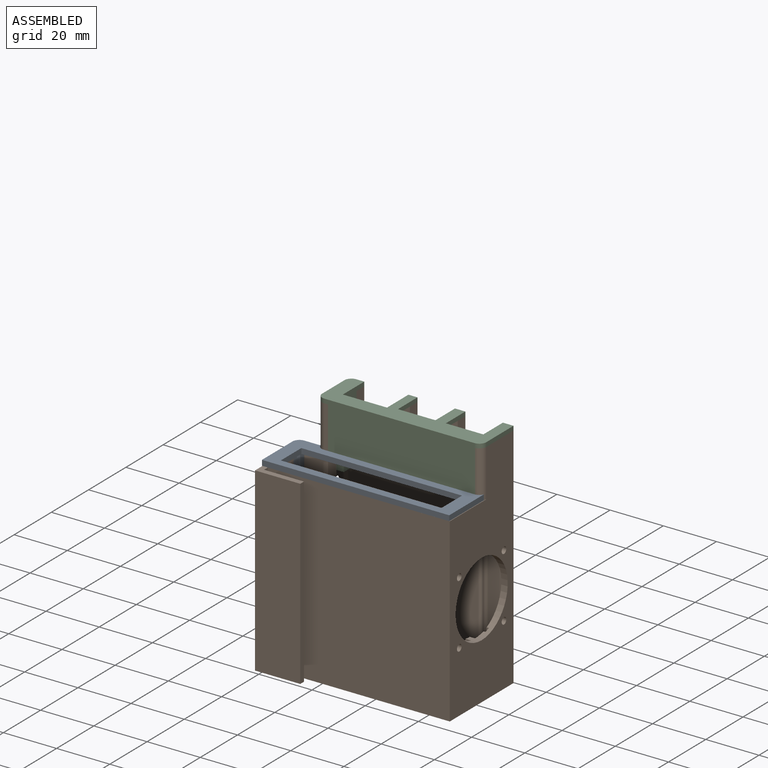
[diagram: assembled view]
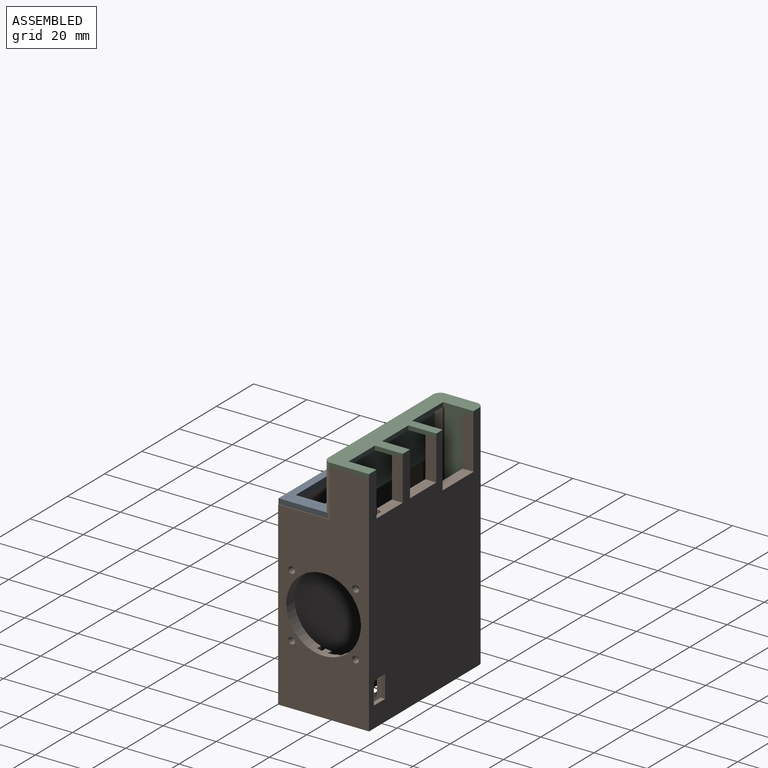
[diagram: assembled view, second angle]
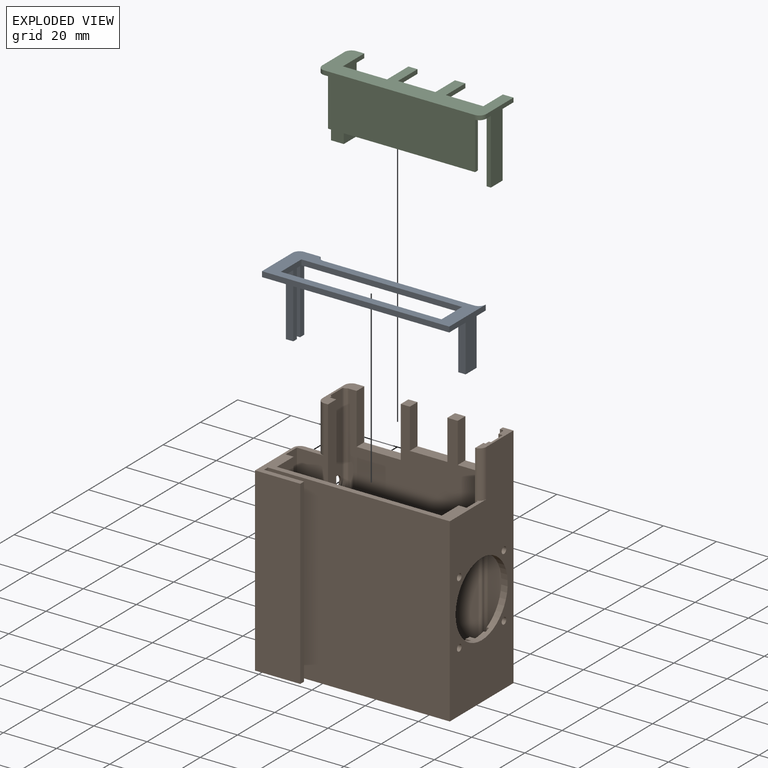
[diagram: exploded view]
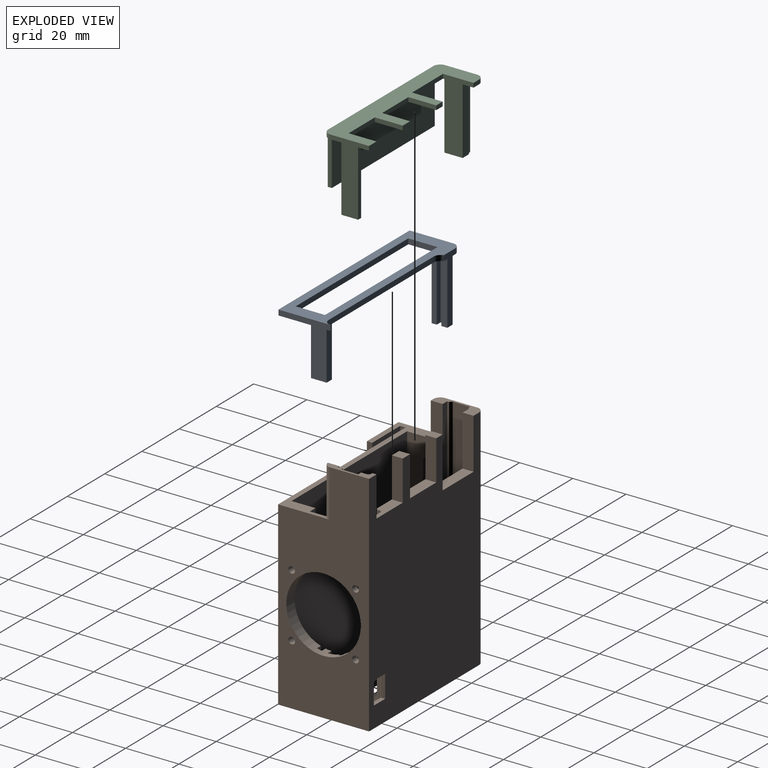
[diagram: exploded view, second angle]
ASSEMBLY  parts=3 mates=2
PART A: 31 faces, bbox 70.4x19.6x27 mm
  f0: plane 70.4x19.59mm, normal (0,0,-1), area 525.2mm2, adj f1,f2,f3,f4,f5,f6,f7,f8
  f1: plane 70.4x2mm, normal (0,-1,0), area 140.8mm2, adj f0,f2,f8,f9
  f2: plane 19.59x2mm, normal (1,0,0), area 39.2mm2, adj f0,f1,f3,f9
  f3: cylinder r=2.6mm len=2.59mm, axis (0,0,-1), area 7.8mm2, adj f0,f2,f4,f9
  f4: plane 57.5x20.9mm, normal (0,1,0), area 166.3mm2, adj f0,f3,f5,f9,f19,f25,f26
  f5: cylinder r=2.6mm len=2.53mm, axis (0,0,-1), area 7mm2, adj f0,f4,f6,f9
  f6: plane 6.17x2mm, normal (0,1,0), area 12.3mm2, adj f0,f5,f7,f9
  f7: cylinder r=2.6mm len=2.6mm, axis (0,0,-1), area 8.2mm2, adj f0,f6,f8,f9
  f8: plane 16.4x2mm, normal (-1,0,0), area 32.8mm2, adj f0,f1,f7,f9
  f9: plane 70.4x19.59mm, normal (0,0,1), area 551.2mm2, adj f1,f2,f3,f4,f5,f6,f7,f8
  f10: plane 25x2.25mm, normal (1,0,0), area 56.2mm2, adj f0,f11,f17,f18
  f11: plane 25x2.8mm, normal (0,1,0), area 70mm2, adj f0,f10,f12,f18
  f12: plane 25x5.9mm, normal (-1,0,0), area 147.5mm2, adj f0,f11,f13,f18
  f13: plane 25x2.8mm, normal (0,-1,0), area 70mm2, adj f0,f12,f14,f18
  f14: plane 25x1.9mm, normal (1,0,0), area 47.5mm2, adj f0,f13,f15,f18
  f15: plane 25x2mm, normal (0,1,0), area 50mm2, adj f0,f14,f16,f18
  f16: plane 25x1.75mm, normal (1,0,0), area 43.8mm2, adj f0,f15,f17,f18
  f17: plane 25x2mm, normal (0,-1,0), area 50mm2, adj f0,f10,f16,f18
  f18: plane 5.9x2.8mm, normal (0,0,-1), area 13mm2, adj f10,f11,f12,f13,f14,f15,f16,f17
  f19: plane 18.9x2.25mm, normal (-1,0,0), area 42.5mm2, adj f0,f4,f20,f26
  f20: plane 18.9x2mm, normal (0,-1,0), area 37.8mm2, adj f0,f19,f21,f26
  f21: plane 18.9x1.75mm, normal (-1,0,0), area 33.1mm2, adj f0,f20,f22,f26
  f22: plane 18.9x2mm, normal (0,1,0), area 37.8mm2, adj f0,f21,f23,f26
  f23: plane 18.9x1.9mm, normal (-1,0,0), area 35.9mm2, adj f0,f22,f24,f26
  f24: plane 18.9x2.8mm, normal (0,-1,0), area 52.9mm2, adj f0,f23,f25,f26
  f25: plane 18.9x5.9mm, normal (1,0,0), area 111.5mm2, adj f0,f4,f24,f26
  f26: plane 5.9x2.8mm, normal (0,0,-1), area 13mm2, adj f4,f19,f20,f21,f22,f23,f24,f25
  f27: plane 60.4x2mm, normal (0,1,0), area 120.8mm2, adj f0,f9,f28,f29
  f28: plane 11x2mm, normal (1,0,0), area 22mm2, adj f0,f9,f27,f30
  f29: plane 11x2mm, normal (-1,0,0), area 22mm2, adj f0,f9,f27,f30
  f30: plane 60.4x2mm, normal (0,-1,0), area 120.8mm2, adj f0,f9,f28,f29
PART B: 160 faces, bbox 70.8x38.6x86.2 mm
  f0: plane 66x11mm, normal (1,0,0), area 577.7mm2, adj f3,f4,f10,f126,f143,f144,f145,f146
  f1: plane 66x11mm, normal (-1,0,0), area 481.6mm2, adj f3,f6,f10,f123,f126,f128,f129,f155
  f2: plane 41x1.75mm, normal (1,0,0), area 71.8mm2, adj f4,f5,f10,f159
  f3: plane 70.4x23.59mm, normal (0,0,1), area 287.6mm2, adj f0,f1,f7,f17,f37,f121,f122,f126
  f4: plane 41x2mm, normal (0,1,0), area 82mm2, adj f0,f2,f10,f159
  f5: plane 41x2mm, normal (0,-1,0), area 82mm2, adj f2,f10,f125,f159
  f6: cylinder r=14mm len=28mm, axis (1,0,0), area 273.4mm2, adj f1,f11,f12,f13,f14,f15,f16,f18
  f7: plane 68x2mm, normal (1,0,0), area 136mm2, adj f3,f9,f127,f141
  f8: plane 69.5x5mm, normal (0,-1,0), area 281.5mm2, adj f31,f59,f61,f68,f70,f139
  f9: plane 70.4x38.2mm, normal (0,0,-1), area 1905.4mm2, adj f7,f15,f37,f38,f39,f43,f44,f45
  f10: plane 66x15mm, normal (0,0,1), area 613.2mm2, adj f0,f1,f2,f4,f5,f15,f16,f17
  f11: plane 37.42x4.48mm, normal (-1,0,0), area 165.3mm2, adj f6,f14,f31,f153,f154
  f12: plane 38.13x1.75mm, normal (-1,0,0), area 66.1mm2, adj f6,f14,f31,f41,f109
  f13: plane 21.69x6.09mm, normal (0,-1,0), area 31.4mm2, adj f6,f21,f34,f40,f85
  f14: plane 37.42x0.8mm, normal (0,1,0), area 29.9mm2, adj f6,f11,f12,f31
  f15: plane 55.3x21.08mm, normal (0,1,0), area 115.7mm2, adj f6,f9,f10,f16,f18,f34,f43,f45
  f16: plane 19.28x2.25mm, normal (-1,0,0), area 43.1mm2, adj f6,f10,f15,f124
  f17: plane 83.8x11.7mm, normal (0,-1,0), area 674.1mm2, adj f3,f10,f20,f101,f125,f152,f157,f159
  f18: plane 20.98x4.48mm, normal (-1,0,0), area 80.7mm2, adj f6,f15,f34,f42,f52,f86,f119
  f19: plane 19.69x1.75mm, normal (-1,0,0), area 34.1mm2, adj f6,f10,f123,f124
  f20: plane 17.2x5.6mm, normal (0,0,1), area 46.4mm2, adj f17,f22,f23,f28,f33,f38,f39,f51
  f21: plane 79.71x8.38mm, normal (-1,0,0), area 352.5mm2, adj f6,f13,f31,f41,f53,f68,f85,f111
  f22: plane 85.1x50.2mm, normal (0,-1,0), area 3518.2mm2, adj f20,f27,f28,f32,f33,f34,f36,f57
  f23: plane 34.45x6.5mm, normal (1,0,0), area 199.8mm2, adj f20,f25,f26,f55,f56,f88
  f24: cone r=1.4mm half-angle=45deg, axis (1,0,0), area 0.8mm2, adj f27,f33,f79,f83,f105
  f25: cone r=3.25mm half-angle=45deg, axis (1,0,0), area 9.7mm2, adj f23,f33,f88,f89
  f26: cylinder r=2.5mm len=5mm, axis (1,0,0), area 12.6mm2, adj f23,f39
  f27: cylinder r=5mm len=6.38mm, axis (0,1,0), area 50.4mm2, adj f22,f24,f33,f34,f79,f87
  f28: cylinder r=1mm len=44.27mm, axis (0,0,-1), area 44.1mm2, adj f20,f22,f33,f89,f90,f93,f95
  f29: plane 5.42x4.59mm, normal (0,1,0), area 18.3mm2, adj f30,f34,f82,f84,f101,f104
  f30: plane 5.34x2.25mm, normal (1,0,0), area 9mm2, adj f29,f34,f54,f79,f82,f87
  f31: plane 17.2x4mm, normal (0,0,1), area 31.1mm2, adj f8,f11,f12,f14,f21,f37,f38,f61
  f32: plane 4.1x3.4mm, normal (0,0,1), area 13.9mm2, adj f22,f38,f63,f67
  f33: plane 80x8.63mm, normal (1,0,0), area 201.6mm2, adj f20,f22,f24,f25,f27,f28,f51,f88
  f34: plane 58.5x15.6mm, normal (0,0,1), area 568.3mm2, adj f13,f15,f18,f22,f27,f29,f30,f40
  f35: plane 7x5mm, normal (0,-1,0), area 22.5mm2, adj f53,f68,f70,f137
  f36: plane 4.1x3.9mm, normal (0,0,1), area 16mm2, adj f22,f38,f60,f64
  f37: plane 85.8x34.2mm, normal (1,0,0), area 1950.2mm2, adj f3,f6,f9,f31,f38,f127,f128,f129
  f38: plane 85.8x59.1mm, normal (0,1,0), area 4281.4mm2, adj f9,f20,f31,f32,f36,f37,f59,f60
  f39: plane 85.8x12mm, normal (-1,0,0), area 818mm2, adj f9,f20,f26,f46,f47,f48,f49,f71
  f40: plane 21.69x1.75mm, normal (-1,0,0), area 37.3mm2, adj f6,f13,f34,f42
  f41: plane 13.13x0.8mm, normal (0,-1,0), area 10.5mm2, adj f6,f12,f21,f112
  f42: plane 20.98x6.09mm, normal (0,1,0), area 30.8mm2, adj f6,f18,f34,f40,f86
  f43: plane 3.58x0.8mm, normal (-1,0,0), area 2.9mm2, adj f9,f15,f34,f100
  f44: plane 12x0.8mm, normal (0,-1,0), area 9.6mm2, adj f9,f34,f99,f100
  f45: plane 3.58x0.8mm, normal (1,0,0), area 2.9mm2, adj f9,f15,f34,f99
  f46: plane 5.4x1.2mm, normal (0,0,1), area 6.5mm2, adj f39,f74,f75,f92
  f47: plane 15.4x1.6mm, normal (0,-1,0), area 24.6mm2, adj f39,f57,f72,f75
  f48: plane 5.4x1.24mm, normal (0,0,-1), area 6.5mm2, adj f39,f72,f73,f95,f97
  f49: plane 15.4x1.2mm, normal (0,1,0), area 18.5mm2, adj f39,f73,f74,f96
  f50: cylinder r=5mm len=4.39mm, axis (0,-1,0), area 12.1mm2, adj f34,f84,f101,f117,f118
  f51: plane 68.42x2.89mm, normal (0,1,0), area 164mm2, adj f20,f33,f81,f101,f102,f108
  f52: plane 6.42x6.42mm, normal (-0.71,0,0.71), area 19.8mm2, adj f18,f34,f86,f119,f120
  f53: plane 9.3x6.42mm, normal (-0.71,0,0.71), area 75mm2, adj f21,f34,f35,f68,f85
  f54: plane 4.5x4.5mm, normal (0,-1,0), area 15.9mm2, adj f30,f34,f87
  f55: plane 31.2x0.48mm, normal (0,-1,0), area 15mm2, adj f20,f23,f56,f90
  f56: cylinder r=3.25mm len=2.33mm, axis (1,0,0), area 0.6mm2, adj f23,f55,f89
  f57: plane 16.26x0.13mm, normal (-1,0,0), area 2mm2, adj f22,f47,f72,f75
  f58: plane 70x0.5mm, normal (1,0,0), area 35mm2, adj f34,f59,f69,f70
  f59: plane 14.1x4.1mm, normal (0,0,1), area 44.3mm2, adj f8,f22,f38,f58,f60,f61,f69,f70
  f60: plane 15x4.1mm, normal (1,0,0), area 61.5mm2, adj f22,f36,f38,f59
  f61: plane 15x1.6mm, normal (-1,0,0), area 24mm2, adj f8,f31,f38,f59
  f62: plane 14.1x4.1mm, normal (0,0,1), area 57.8mm2, adj f22,f38,f63,f64
  f63: plane 15x4.1mm, normal (1,0,0), area 61.5mm2, adj f22,f32,f38,f62
  f64: plane 15x4.1mm, normal (-1,0,0), area 61.5mm2, adj f22,f36,f38,f62
  f65: plane 16.6x4.1mm, normal (0,0,1), area 68.1mm2, adj f22,f38,f66,f67
  f66: plane 19x4.1mm, normal (1,0,0), area 77.9mm2, adj f20,f22,f38,f65
  f67: plane 19x4.1mm, normal (-1,0,0), area 77.9mm2, adj f22,f32,f38,f65
  f68: cylinder r=1mm len=80mm, axis (0,0,-1), area 117mm2, adj f8,f21,f31,f35,f53,f136,f137,f139
  f69: cylinder r=1mm len=70mm, axis (0,0,1), area 110mm2, adj f22,f34,f58,f59
  f70: cylinder r=1mm len=70mm, axis (0,0,1), area 108.2mm2, adj f8,f34,f35,f58,f59,f137,f138,f139
  f71: cylinder r=2.6mm len=85.8mm, axis (0,0,-1), area 350.4mm2, adj f9,f20,f38,f39
  f72: cylinder r=0.8mm len=2.19mm, axis (1,0,0), area 2.1mm2, adj f22,f39,f47,f48,f57,f93
  f73: cylinder r=0.8mm len=1.2mm, axis (1,0,0), area 1.5mm2, adj f39,f48,f49,f98
  f74: cylinder r=0.8mm len=1.2mm, axis (1,0,0), area 1.5mm2, adj f39,f46,f49,f94
  f75: cylinder r=0.8mm len=1.6mm, axis (1,0,0), area 1.7mm2, adj f22,f39,f46,f47,f57,f91
  f76: plane 10x3.6mm, normal (0,1,0), area 36mm2, adj f39,f81,f82,f103
  f77: plane 4.2x1.2mm, normal (0,0,-1), area 5mm2, adj f39,f80,f81,f107
  f78: plane 10x1.2mm, normal (0,-1,0), area 12mm2, adj f39,f80,f83,f105
  f79: plane 4.5x1.9mm, normal (0,0,1), area 6.5mm2, adj f24,f27,f30,f39,f82,f83
  f80: cylinder r=1mm len=1.2mm, axis (1,0,0), area 1.9mm2, adj f39,f77,f78,f106
  f81: cylinder r=1mm len=3.6mm, axis (1,0,0), area 3.6mm2, adj f39,f51,f76,f77,f102,f108
  f82: cylinder r=1mm len=3.6mm, axis (1,0,0), area 4mm2, adj f29,f30,f39,f76,f79,f104
  f83: cylinder r=1mm len=1.2mm, axis (1,0,0), area 1.9mm2, adj f24,f39,f78,f79
  f84: cone r=4.5mm half-angle=45deg, axis (0,-1,0), area 3.5mm2, adj f29,f34,f50,f101
  f85: plane 6x6mm, normal (-0.5,-0.71,0.5), area 5.6mm2, adj f13,f21,f34,f53
  f86: plane 6x6mm, normal (-0.5,0.71,0.5), area 5.6mm2, adj f18,f34,f42,f52
  f87: cone r=4.5mm half-angle=45deg, axis (0,1,0), area 5.3mm2, adj f27,f30,f34,f54
  f88: plane 31.2x0.8mm, normal (0.71,0.71,0), area 35.3mm2, adj f20,f23,f25,f33
  f89: bspline ~2.9x1.24mm, area 2.4mm2, adj f25,f28,f56,f90
  f90: plane 31.2x0.59mm, normal (0.4,-0.92,0), area 20mm2, adj f20,f28,f55,f89
  f91: cone r=1.2mm half-angle=45deg, axis (1,0,0), area 0.4mm2, adj f22,f33,f75,f92
  f92: plane 5.4x0.4mm, normal (0.71,0,0.71), area 3.1mm2, adj f33,f46,f91,f94
  f93: bspline ~1.42x0.84mm, area 0.6mm2, adj f22,f28,f72,f95
  f94: cone r=1.2mm half-angle=45deg, axis (1,0,0), area 0.9mm2, adj f33,f74,f92,f96
  f95: cone r=1.4mm half-angle=45deg, axis (0,0,-1), area 0.2mm2, adj f28,f48,f93,f97
  f96: plane 15.4x0.4mm, normal (0.71,0.71,0), area 8.7mm2, adj f33,f49,f94,f98
  f97: plane 5.08x0.4mm, normal (0.71,0,-0.71), area 2.9mm2, adj f33,f48,f95,f98
  f98: cone r=1.2mm half-angle=45deg, axis (1,0,0), area 0.9mm2, adj f33,f73,f96,f97
  f99: cylinder r=1mm len=1mm, axis (0,0,-1), area 1.3mm2, adj f9,f34,f44,f45
  f100: cylinder r=1mm len=1mm, axis (0,0,-1), area 1.3mm2, adj f9,f34,f43,f44
  f101: plane 85.02x4.49mm, normal (1,0,0), area 364.7mm2, adj f15,f17,f20,f29,f34,f50,f51,f84
  f102: cone r=1.4mm half-angle=45deg, axis (1,0,0), area 0.6mm2, adj f51,f81,f101,f103
  f103: plane 10x0.4mm, normal (0.71,0.71,0), area 5.7mm2, adj f76,f101,f102,f104
  f104: cone r=1.4mm half-angle=45deg, axis (1,0,0), area 0.6mm2, adj f29,f82,f101,f103
  f105: plane 10x0.4mm, normal (0.71,-0.71,0), area 5.7mm2, adj f24,f33,f78,f106
  f106: cone r=1.4mm half-angle=45deg, axis (1,0,0), area 1.1mm2, adj f33,f80,f105,f107
  f107: plane 4.2x0.4mm, normal (0.71,0,-0.71), area 2.4mm2, adj f33,f77,f106,f108
  f108: cone r=1.4mm half-angle=45deg, axis (1,0,0), area 0.5mm2, adj f33,f51,f81,f107
  f109: plane 25x0.8mm, normal (0,1,0), area 20mm2, adj f12,f31,f110,f112
  f110: plane 25x6.3mm, normal (-1,0,0), area 157.5mm2, adj f31,f109,f111,f112
  f111: plane 25x1.6mm, normal (0,-1,0), area 40mm2, adj f21,f31,f110,f112
  f112: plane 6.3x1.6mm, normal (0,0,1), area 10.1mm2, adj f21,f41,f109,f110,f111
  f113: plane 3x0.8mm, normal (1,0,0), area 2.4mm2, adj f9,f34,f114,f115
  f114: plane 5.92x0.8mm, normal (0,1,0), area 4.7mm2, adj f9,f34,f113,f116
  f115: plane 5.92x0.8mm, normal (0,-1,0), area 4.7mm2, adj f9,f34,f113,f116
  f116: plane 3x0.8mm, normal (-1,0,0), area 2.4mm2, adj f9,f34,f114,f115
  f117: cylinder r=1mm len=4.39mm, axis (0,0,1), area 6.3mm2, adj f34,f50,f101,f118
  f118: plane 3.67x1.6mm, normal (0,-1,0), area 4.1mm2, adj f34,f50,f117
  f119: cylinder r=1mm len=6mm, axis (0,0,1), area 8.6mm2, adj f18,f34,f52,f120
  f120: plane 5x5mm, normal (0,-1,0), area 12.5mm2, adj f34,f52,f119
  f121: plane 68x20.4mm, normal (-1,0,0), area 1288.9mm2, adj f3,f9,f140,f143,f144,f145,f146,f147
  f122: plane 68x6.17mm, normal (0,1,0), area 419.6mm2, adj f3,f9,f151,f152
  f123: plane 19.69x2mm, normal (0,1,0), area 39.4mm2, adj f1,f6,f10,f19
  f124: plane 19.28x2mm, normal (0,-1,0), area 38.6mm2, adj f6,f10,f16,f19
  f125: plane 41x2.25mm, normal (1,0,0), area 92.3mm2, adj f5,f10,f17,f159
  f126: plane 66x62mm, normal (0,1,0), area 4092mm2, adj f0,f1,f3,f10
  f127: plane 68.4x68mm, normal (0,-1,0), area 4651.2mm2, adj f3,f7,f9,f37
  f128: cylinder r=1.25mm len=4.4mm, axis (1,0,0), area 34.6mm2, adj f1,f37
  f129: cylinder r=1.25mm len=4.4mm, axis (1,0,0), area 34.6mm2, adj f1,f37
  f130: cylinder r=1.25mm len=2.5mm, axis (1,0,0), area 18.8mm2, adj f21,f37
  f131: cylinder r=1.25mm len=2.5mm, axis (1,0,0), area 18.8mm2, adj f21,f37
  f132: plane 7x2mm, normal (-1,0,0), area 14mm2, adj f9,f10,f133,f134
  f133: plane 46.25x2mm, normal (0,-1,0), area 92.5mm2, adj f9,f10,f132,f135
  f134: plane 46.25x2mm, normal (0,1,0), area 92.5mm2, adj f9,f10,f132,f135
  f135: plane 7x2mm, normal (1,0,0), area 14mm2, adj f9,f10,f133,f134
  f136: plane 8.5x2mm, normal (-1,0,0), area 17mm2, adj f38,f68,f137,f139
  f137: plane 6x2mm, normal (0,0,1), area 9.7mm2, adj f35,f38,f68,f70,f136,f138
  f138: plane 8.5x1.62mm, normal (1,0,0), area 13.8mm2, adj f38,f70,f137,f139
  f139: plane 6x2mm, normal (0,0,-1), area 9.7mm2, adj f8,f38,f68,f70,f136,f138
  f140: plane 68x17mm, normal (0,-1,0), area 1156mm2, adj f3,f9,f121,f142
  f141: plane 68x15mm, normal (0,1,0), area 1020mm2, adj f3,f7,f9,f142
  f142: plane 68x2mm, normal (1,0,0), area 136mm2, adj f3,f9,f140,f141
  f143: cylinder r=1mm len=4mm, axis (-1,0,0), area 12.6mm2, adj f0,f121,f144,f146
  f144: plane 23x4mm, normal (0,-1,0), area 92mm2, adj f0,f121,f143,f145
  f145: cylinder r=1mm len=4mm, axis (-1,0,0), area 12.6mm2, adj f0,f121,f144,f146
  f146: plane 23x4mm, normal (0,1,0), area 92mm2, adj f0,f121,f143,f145
  f147: cylinder r=1mm len=4mm, axis (-1,0,0), area 12.6mm2, adj f0,f121,f148,f150
  f148: plane 23x4mm, normal (0,-1,0), area 92mm2, adj f0,f121,f147,f149
  f149: cylinder r=1mm len=4mm, axis (-1,0,0), area 12.6mm2, adj f0,f121,f148,f150
  f150: plane 23x4mm, normal (0,1,0), area 92mm2, adj f0,f121,f147,f149
  f151: cylinder r=2.6mm len=68mm, axis (0,0,-1), area 277.7mm2, adj f3,f9,f121,f122
  f152: cylinder r=2.6mm len=85.8mm, axis (0,0,1), area 113.9mm2, adj f3,f9,f17,f20,f39,f122
  f153: cylinder r=2.6mm len=17.8mm, axis (0,0,1), area 69.1mm2, adj f3,f11,f31,f37
  f154: plane 18.92x1mm, normal (0,-1,0), area 18.9mm2, adj f3,f6,f11,f156
  f155: plane 20.32x3mm, normal (0,1,0), area 61mm2, adj f1,f3,f6,f156
  f156: plane 20.32x6mm, normal (-1,0,0), area 116.3mm2, adj f3,f6,f154,f155
  f157: plane 25x6mm, normal (1,0,0), area 150mm2, adj f3,f17,f158,f159
  f158: plane 25x3mm, normal (0,1,0), area 75mm2, adj f0,f3,f157,f159
  f159: plane 6x3mm, normal (0,0,1), area 14.5mm2, adj f0,f2,f4,f5,f17,f125,f157,f158
PART C: 37 faces, bbox 61.7x17.2x26.6 mm
  f0: plane 25x6.3mm, normal (-1,0,0), area 157.5mm2, adj f1,f22,f23,f30
  f1: plane 6.88x4.8mm, normal (0,0,-1), area 32.4mm2, adj f0,f10,f23,f29,f30,f31,f32
  f2: plane 10.48x1.6mm, normal (1,0,0), area 16.8mm2, adj f3,f20,f21,f22
  f3: plane 3.9x1.6mm, normal (0,1,0), area 6.2mm2, adj f2,f4,f21,f22
  f4: plane 10.48x1.6mm, normal (-1,0,0), area 16.8mm2, adj f3,f5,f21,f22
  f5: plane 14.1x1.6mm, normal (0,1,0), area 22.6mm2, adj f4,f6,f21,f22
  f6: plane 10.48x1.6mm, normal (1,0,0), area 16.8mm2, adj f5,f7,f21,f22
  f7: plane 3.4x1.6mm, normal (0,1,0), area 5.4mm2, adj f6,f8,f21,f22
  f8: plane 11.48x1.6mm, normal (-1,0,0), area 18.4mm2, adj f7,f9,f21,f22
  f9: plane 16.6x1.6mm, normal (0,1,0), area 26.6mm2, adj f8,f10,f21,f22
  f10: plane 26.6x11.48mm, normal (1,0,0), area 190.2mm2, adj f1,f9,f11,f21,f22,f23,f29
  f11: plane 3x1.6mm, normal (0,1,0), area 4.8mm2, adj f10,f12,f21,f22
  f12: cylinder r=2.6mm len=2.6mm, axis (0,0,-1), area 6.5mm2, adj f11,f13,f21,f22
  f13: plane 12x1.6mm, normal (-1,0,0), area 19.2mm2, adj f12,f14,f21,f22
  f14: cylinder r=2.6mm len=2.6mm, axis (0,0,-1), area 6.5mm2, adj f13,f15,f21,f22
  f15: plane 56.5x19.4mm, normal (0,-1,0), area 1071.2mm2, adj f14,f16,f21,f22,f34,f36
  f16: cylinder r=2.6mm len=19.4mm, axis (0,0,-1), area 10.1mm2, adj f15,f17,f21,f22,f33,f36
  f17: plane 14.6x1.6mm, normal (1,0,0), area 23.4mm2, adj f16,f18,f21,f22
  f18: plane 4x1.6mm, normal (0,1,0), area 6.4mm2, adj f17,f19,f21,f22
  f19: plane 10.48x1.6mm, normal (-1,0,0), area 16.8mm2, adj f18,f20,f21,f22
  f20: plane 14.1x1.6mm, normal (0,1,0), area 22.6mm2, adj f2,f19,f21,f22
  f21: plane 61.7x17.2mm, normal (0,0,1), area 571mm2, adj f2,f3,f4,f5,f6,f7,f8,f9
  f22: plane 61.7x17.2mm, normal (0,0,-1), area 445.6mm2, adj f0,f2,f3,f4,f5,f6,f7,f8
  f23: plane 25x4.8mm, normal (0,-1,0), area 120mm2, adj f0,f1,f10,f22
  f24: plane 25x1.6mm, normal (0,-1,0), area 40mm2, adj f22,f25,f27,f28
  f25: plane 25x6.3mm, normal (-1,0,0), area 157.5mm2, adj f22,f24,f26,f28
  f26: plane 25x1.6mm, normal (0,1,0), area 40mm2, adj f22,f25,f27,f28
  f27: plane 25x6.3mm, normal (1,0,0), area 157.5mm2, adj f22,f24,f26,f28
  f28: plane 6.3x1.6mm, normal (0,0,-1), area 10.1mm2, adj f24,f25,f26,f27
  f29: plane 25x3mm, normal (0,1,0), area 75mm2, adj f1,f10,f22,f31
  f30: plane 25x0.48mm, normal (0,1,0), area 12mm2, adj f0,f1,f22,f32
  f31: cylinder r=1mm len=25mm, axis (0,0,-1), area 20.6mm2, adj f1,f22,f29,f32
  f32: plane 25x0.59mm, normal (-0.4,0.92,0), area 16mm2, adj f1,f22,f30,f31
  f33: plane 17.8x1.49mm, normal (1,0,0), area 26.6mm2, adj f16,f22,f35,f36
  f34: plane 17.8x1.5mm, normal (-1,0,0), area 26.7mm2, adj f15,f22,f35,f36
  f35: plane 55.3x17.8mm, normal (0,1,0), area 984.3mm2, adj f22,f33,f34,f36
  f36: plane 55.3x1.5mm, normal (0,0,-1), area 82.9mm2, adj f15,f16,f33,f34,f35
PLACE A t=(21.25,26.99,46.32)mm
PLACE B t=(19.28,27.97,-20.88)mm fixed
PLACE C t=(19.28,27.97,64.12)mm
MATE slider C.f28 <-> B.f112  axis (0,0,1) through (49.33,31.89,39.12)mm
MATE slider A.f18 <-> B.f159  axis (0,0,1) through (-19.27,19.37,21.32)mm
